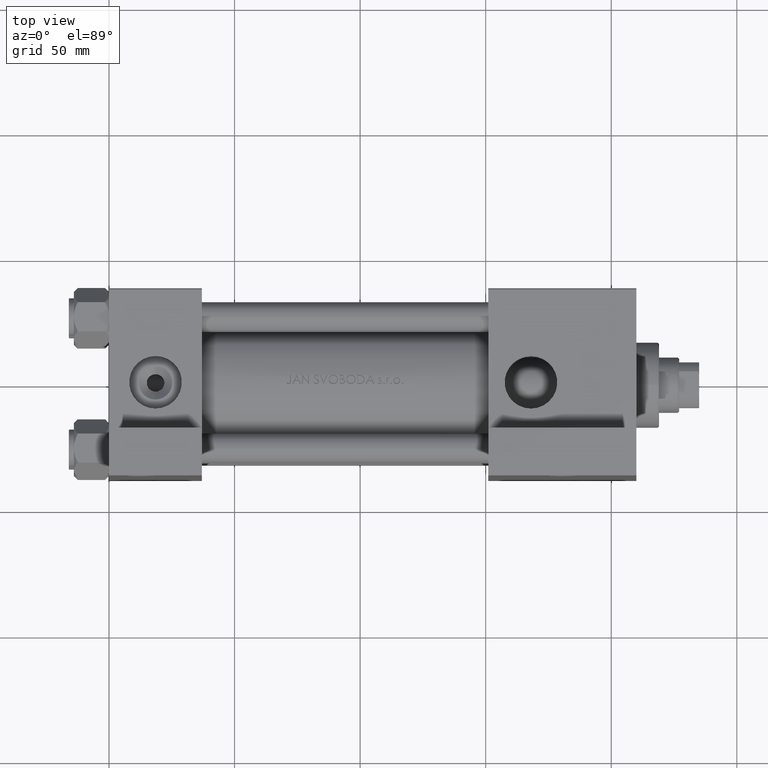
[diagram: clean part render]
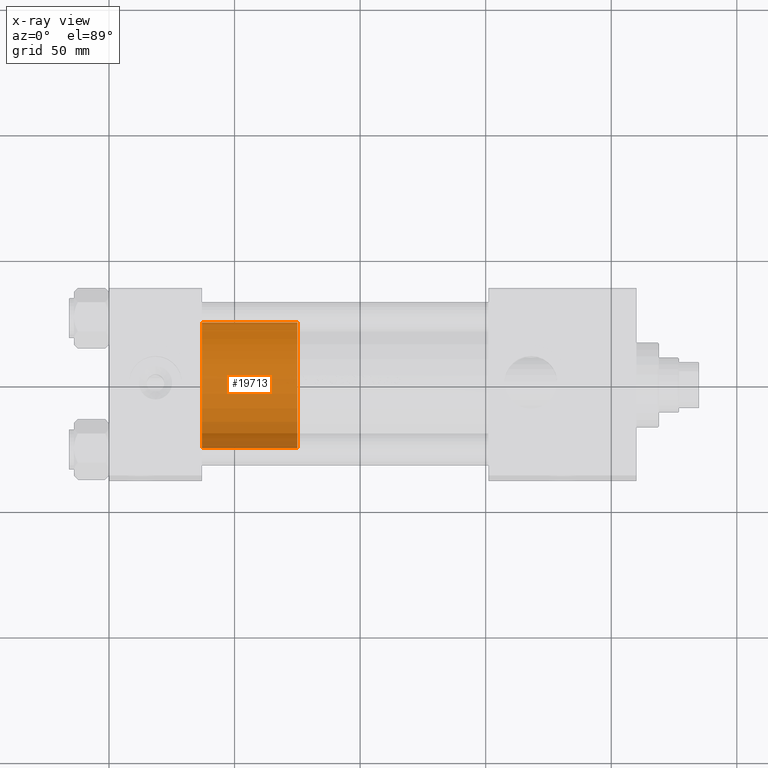
[diagram: x-ray — body ghosted, one internal face saturated and labeled with its STEP entity id]
A machine part, top view, then the same camera in x-ray: the body is ghosted and one INTERNAL B-rep face — a face not visible from any outside direction — is saturated and labeled: STEP entity #19713.
In plain terms, the highlighted cylindrical surface (partial cylindrical patch) has radius 25 mm, axis along (-1, 0, 0).
Its self-contained STEP definition (entity closure, byte-faithful):
#1180 = DIRECTION ( 'NONE',  ( -1.000000000000000000, 0.000000000000000000, 0.000000000000000000 ) ) ;
#2367 = VECTOR ( 'NONE', #38628, 1000.000000000000000 ) ;
#3985 = VERTEX_POINT ( 'NONE', #22230 ) ;
#4483 = DIRECTION ( 'NONE',  ( 0.000000000000000000, 0.000000000000000000, 1.000000000000000000 ) ) ;
#4671 = CYLINDRICAL_SURFACE ( 'NONE', #43509, 25.00000000000000000 ) ;
#4984 = DIRECTION ( 'NONE',  ( 0.000000000000000000, 0.000000000000000000, 1.000000000000000000 ) ) ;
#6407 = CARTESIAN_POINT ( 'NONE',  ( -25.00000000000000000, 0.000000000000000000, 38.00000000000000000 ) ) ;
#9200 = CARTESIAN_POINT ( 'NONE',  ( 0.000000000000000000, 0.000000000000000000, 0.000000000000000000 ) ) ;
#10535 = CIRCLE ( 'NONE', #27285, 25.00000000000000000 ) ;
#12703 = LINE ( 'NONE', #19941, #2367 ) ;
#18257 = ORIENTED_EDGE ( 'NONE', *, *, #19595, .F. ) ;
#19248 = EDGE_CURVE ( 'NONE', #30814, #28095, #49125, .T. ) ;
#19386 = CARTESIAN_POINT ( 'NONE',  ( -25.00000000000000000, 0.000000000000000000, 38.00000000000000000 ) ) ;
#19595 = EDGE_CURVE ( 'NONE', #25485, #28095, #42049, .T. ) ;
#19713 = ADVANCED_FACE ( 'NONE', ( #38817 ), #4671, .T. ) ;
#19941 = CARTESIAN_POINT ( 'NONE',  ( 25.00000000000000000, 3.061616997868383043E-15, 38.00000000000000000 ) ) ;
#20931 = DIRECTION ( 'NONE',  ( 1.000000000000000000, 0.000000000000000000, 0.000000000000000000 ) ) ;
#21007 = ORIENTED_EDGE ( 'NONE', *, *, #27444, .T. ) ;
#21798 = ORIENTED_EDGE ( 'NONE', *, *, #19248, .T. ) ;
#22230 = CARTESIAN_POINT ( 'NONE',  ( 25.00000000000000000, 3.061616997868383043E-15, 38.00000000000000000 ) ) ;
#24386 = CARTESIAN_POINT ( 'NONE',  ( 0.000000000000000000, 0.000000000000000000, 38.00000000000000000 ) ) ;
#25485 = VERTEX_POINT ( 'NONE', #6407 ) ;
#26189 = CARTESIAN_POINT ( 'NONE',  ( 0.000000000000000000, 0.000000000000000000, 38.00000000000000000 ) ) ;
#26245 = CARTESIAN_POINT ( 'NONE',  ( 25.00000000000000000, 3.061616997868383043E-15, 0.000000000000000000 ) ) ;
#26812 = CARTESIAN_POINT ( 'NONE',  ( -25.00000000000000000, 0.000000000000000000, 0.000000000000000000 ) ) ;
#27285 = AXIS2_PLACEMENT_3D ( 'NONE', #26189, #4483, #41375 ) ;
#27444 = EDGE_CURVE ( 'NONE', #3985, #30814, #12703, .T. ) ;
#27694 = AXIS2_PLACEMENT_3D ( 'NONE', #9200, #4984, #20931 ) ;
#28095 = VERTEX_POINT ( 'NONE', #26812 ) ;
#28128 = EDGE_LOOP ( 'NONE', ( #29196, #21007, #21798, #18257 ) ) ;
#29196 = ORIENTED_EDGE ( 'NONE', *, *, #38711, .F. ) ;
#30609 = DIRECTION ( 'NONE',  ( -0.000000000000000000, -0.000000000000000000, -1.000000000000000000 ) ) ;
#30814 = VERTEX_POINT ( 'NONE', #26245 ) ;
#38628 = DIRECTION ( 'NONE',  ( -0.000000000000000000, -0.000000000000000000, -1.000000000000000000 ) ) ;
#38711 = EDGE_CURVE ( 'NONE', #3985, #25485, #10535, .T. ) ;
#38817 = FACE_OUTER_BOUND ( 'NONE', #28128, .T. ) ;
#41375 = DIRECTION ( 'NONE',  ( 1.000000000000000000, 0.000000000000000000, 0.000000000000000000 ) ) ;
#42049 = LINE ( 'NONE', #19386, #44281 ) ;
#43509 = AXIS2_PLACEMENT_3D ( 'NONE', #24386, #46533, #1180 ) ;
#44281 = VECTOR ( 'NONE', #30609, 1000.000000000000000 ) ;
#46533 = DIRECTION ( 'NONE',  ( -0.000000000000000000, -0.000000000000000000, -1.000000000000000000 ) ) ;
#49125 = CIRCLE ( 'NONE', #27694, 25.00000000000000000 ) ;